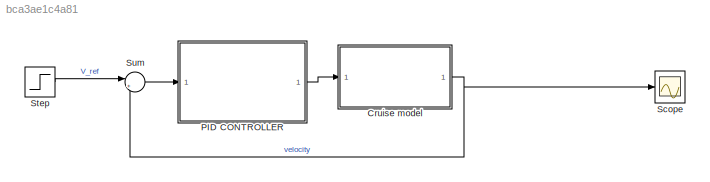
MODEL slx_bca3ae1c4a81
KIND model
CONFIG AbsTol = auto
CONFIG EnableMultiTasking = off
CONFIG FixedStep = auto
CONFIG MaxStep = auto
CONFIG MinStep = auto
CONFIG RelTol = 1e-3
CONFIG SampleTimeConstraint = Unconstrained
CONFIG SolverName = VariableStepAuto
CONFIG StartTime = 0.0
CONFIG StopTime = 10.0
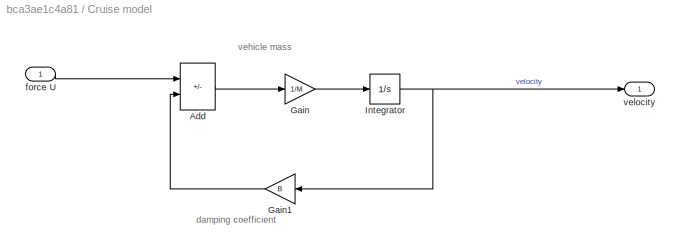
BLOCK [SubSystem] Cruise model
  Ports = [1, 1]
  RequestExecContextInheritance = off
BLOCK [Sum] Cruise model/Add
  IconShape = rectangular
  Inputs = +-
  Ports = [2, 1]
BLOCK [Gain] Cruise model/Gain
  Gain = 1/M
BLOCK [Gain] Cruise model/Gain1
  Gain = B
  NameLocation = top
BLOCK [Integrator] Cruise model/Integrator
  Ports = [1, 1]
BLOCK [Inport] Cruise model/force U
BLOCK [Outport] Cruise model/velocity
BLOCK [ModelReference] PID CONTROLLER
  ModelNameDialog = PI
  ModelReferenceVersion = 1.5
  Ports = [1, 1]
BLOCK [Scope] Scope
  Floating = off
  NumInputPorts = 1
  Ports = [1]
  ScopeSpecificationString = Simulink.scopes.TimeScopeBlockCfg('CurrentConfiguration', extmgr.ConfigurationSet(extmgr.Configuration('Core','General UI',true),extmgr.Configuration('Core','Source UI',true),extmgr.Configuration('Sources','WiredSimulink',true),extmgr.Configuration('Visuals','Time Domain',true,'SerializedDisplays',{struct('MinYLimReal','-1.3553','MaxYLimReal','12.19773','YLabelReal','','MinYLimMag','0.00000','MaxY...<+1330ch>
BLOCK [Step] Step
  After = 10
  SampleTime = 0
  Time = 0
BLOCK [Sum] Sum
  Inputs = |+-
  Ports = [2, 1]
ANNOTATION Cruise model: damping coefficient
ANNOTATION Cruise model: vehicle mass
LINE Cruise model/Add:1 -> Cruise model/Gain:1
LINE Cruise model/Gain1:1 -> Cruise model/Add:2
LINE Cruise model/Gain:1 -> Cruise model/Integrator:1
NET Cruise model/Integrator:1 -> Cruise model/Gain1:1, Cruise model/velocity:1
LINE Cruise model/force U:1 -> Cruise model/Add:1
NET Cruise model:1 -> Scope:1, Sum:2
LINE PID CONTROLLER:1 -> Cruise model:1
LINE Step:1 -> Sum:1
LINE Sum:1 -> PID CONTROLLER:1
note: NET lines group one-source signal fan-out (src -> all destinations, sorted); 1:1 wires keep LINE
